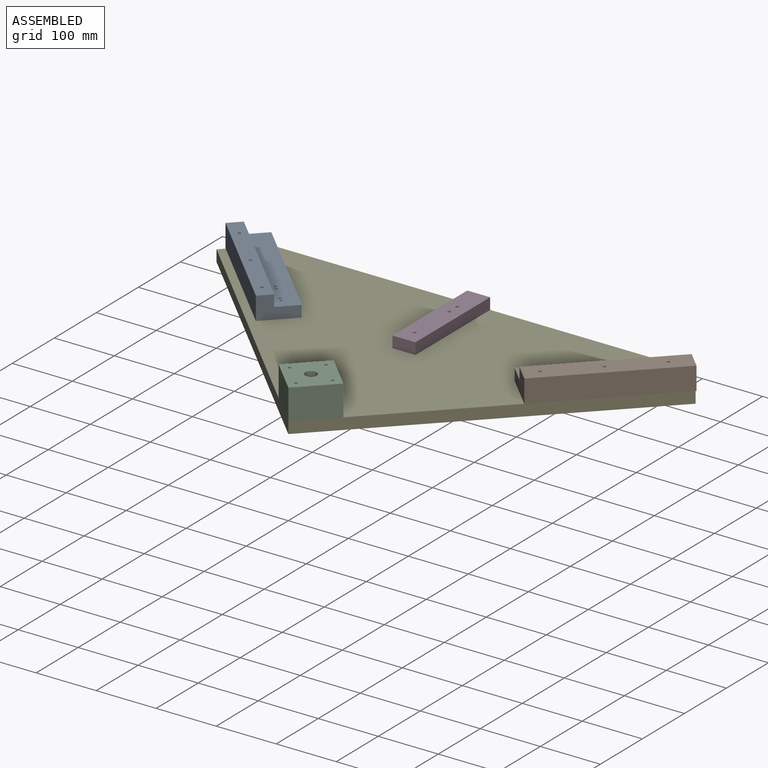
[diagram: assembled view]
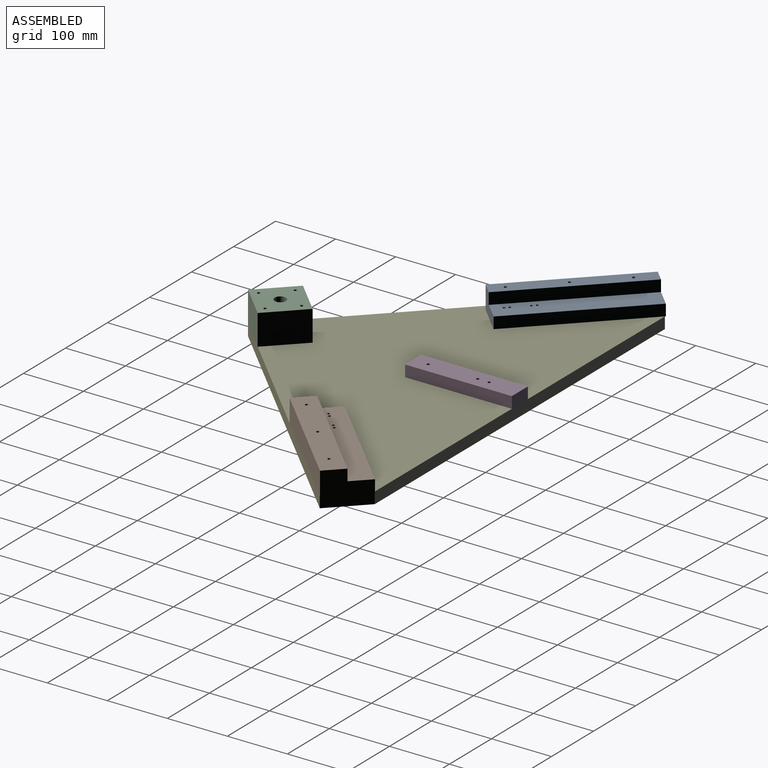
[diagram: assembled view, second angle]
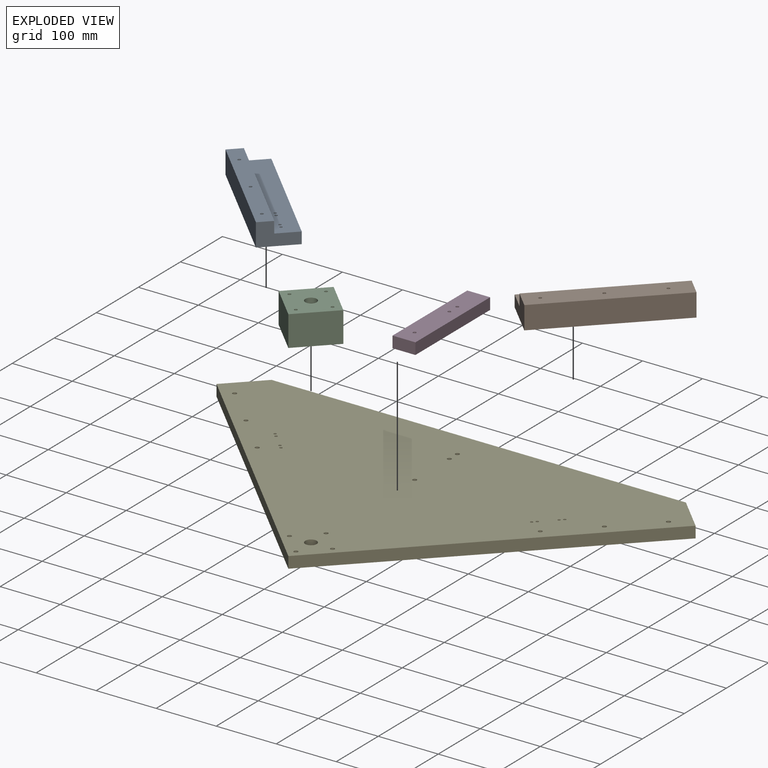
[diagram: exploded view]
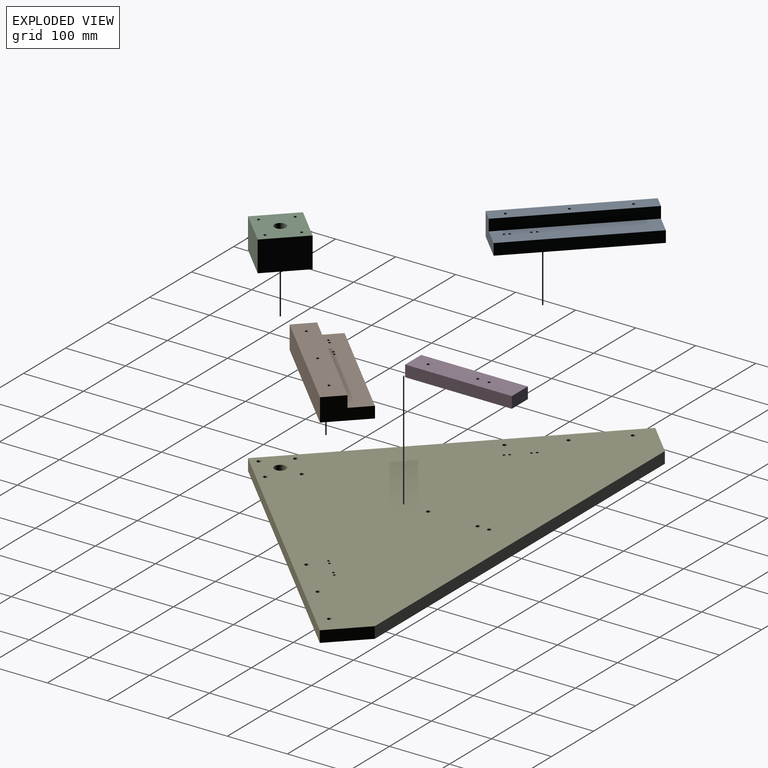
[diagram: exploded view, second angle]
ASSEMBLY  parts=5 mates=4
PART A: 15 faces, bbox 213.7x213.7x38.1 mm
  f0: plane 195.7x195.7mm, normal (0,0,1), area 9033.3mm2, adj f1,f3,f4,f6,f8,f9,f10,f11
  f1: plane 44.9x44.9mm, normal (-0.71,0.71,0), area 1693.5mm2, adj f0,f2,f4,f5,f6,f7
  f2: plane 168.76x168.76mm, normal (-0.71,-0.71,0), area 9093.1mm2, adj f1,f3,f5,f7
  f3: plane 44.9x44.9mm, normal (0.71,-0.71,0), area 1693.5mm2, adj f0,f2,f4,f5,f6,f7
  f4: plane 168.76x168.76mm, normal (0.71,0.71,0), area 4546.6mm2, adj f0,f1,f3,f5
  f5: plane 213.66x213.66mm, normal (0,0,-1), area 15033.9mm2, adj f1,f2,f3,f4,f8,f9,f10,f11
  f6: plane 168.76x168.76mm, normal (0.71,0.71,0), area 4546.6mm2, adj f0,f1,f3,f7
  f7: plane 186.72x186.72mm, normal (0,0,1), area 6000.7mm2, adj f1,f2,f3,f6,f12,f13,f14
  f8: cylinder r=2.18mm len=19.05mm, axis (0,0,1), area 261.3mm2, adj f0,f5
  f9: cylinder r=2.18mm len=19.05mm, axis (0,0,1), area 261.3mm2, adj f0,f5
  f10: cylinder r=2.18mm len=19.05mm, axis (0,0,1), area 261.3mm2, adj f0,f5
  f11: cylinder r=2.18mm len=19.05mm, axis (0,0,1), area 261.3mm2, adj f0,f5
  f12: cylinder r=2.55mm len=38.1mm, axis (0,0,-1), area 611.1mm2, adj f5,f7
  f13: cylinder r=2.55mm len=38.1mm, axis (0,0,-1), area 611.1mm2, adj f5,f7
  f14: cylinder r=2.55mm len=38.1mm, axis (0,0,-1), area 611.1mm2, adj f5,f7
PART B: 15 faces, bbox 222.6x222.6x38.1 mm
  f0: plane 168.76x168.76mm, normal (-0.71,0.71,0), area 4546.6mm2, adj f1,f7,f8,f9
  f1: plane 53.88x53.88mm, normal (-0.71,-0.71,0), area 2177.4mm2, adj f0,f2,f8,f9,f10,f11
  f2: plane 168.76x168.76mm, normal (0.71,-0.71,0), area 9093.1mm2, adj f1,f7,f9,f11
  f3: cylinder r=2.18mm len=19.05mm, axis (0,0,-1), area 261.3mm2, adj f8,f9
  f4: cylinder r=2.18mm len=19.05mm, axis (0,0,-1), area 261.3mm2, adj f8,f9
  f5: cylinder r=2.18mm len=19.05mm, axis (0,0,-1), area 261.3mm2, adj f8,f9
  f6: cylinder r=2.18mm len=19.05mm, axis (0,0,-1), area 261.3mm2, adj f8,f9
  f7: plane 53.88x53.88mm, normal (0.71,0.71,0), area 2177.4mm2, adj f0,f2,f8,f9,f10,f11
  f8: plane 195.7x195.7mm, normal (0,0,1), area 9033.3mm2, adj f0,f1,f3,f4,f5,f6,f7,f10
  f9: plane 222.64x222.64mm, normal (0,0,-1), area 18065mm2, adj f0,f1,f2,f3,f4,f5,f6,f7
  f10: plane 168.76x168.76mm, normal (-0.71,0.71,0), area 4546.6mm2, adj f1,f7,f8,f11
  f11: plane 195.7x195.7mm, normal (0,0,1), area 9031.7mm2, adj f1,f2,f7,f10,f12,f13,f14
  f12: cylinder r=2.55mm len=38.1mm, axis (0,0,-1), area 611.1mm2, adj f9,f11
  f13: cylinder r=2.55mm len=38.1mm, axis (0,0,-1), area 611.1mm2, adj f9,f11
  f14: cylinder r=2.55mm len=38.1mm, axis (0,0,-1), area 611.1mm2, adj f9,f11
PART C: 11 faces, bbox 76.2x76.2x50.8 mm
  f0: plane 76.2x50.8mm, normal (0,1,0), area 3871mm2, adj f1,f4,f5,f6
  f1: plane 76.2x50.8mm, normal (-1,0,0), area 3871mm2, adj f0,f2,f5,f6
  f2: plane 76.2x50.8mm, normal (0,-1,0), area 3871mm2, adj f1,f4,f5,f6
  f3: cylinder r=9.53mm len=50.8mm, axis (0,0,-1), area 3040.2mm2, adj f5,f6
  f4: plane 76.2x50.8mm, normal (1,0,0), area 3871mm2, adj f0,f2,f5,f6
  f5: plane 76.2x76.2mm, normal (0,0,1), area 5439.5mm2, adj f0,f1,f2,f3,f4,f7,f8,f9
  f6: plane 76.2x76.2mm, normal (0,0,-1), area 5439.5mm2, adj f0,f1,f2,f3,f4,f7,f8,f9
  f7: cylinder r=2.55mm len=50.8mm, axis (0,0,1), area 814.8mm2, adj f5,f6
  f8: cylinder r=2.55mm len=50.8mm, axis (0,0,1), area 814.8mm2, adj f5,f6
  f9: cylinder r=2.55mm len=50.8mm, axis (0,0,1), area 814.8mm2, adj f5,f6
  f10: cylinder r=2.55mm len=50.8mm, axis (0,0,1), area 814.8mm2, adj f5,f6
PART D: 9 faces, bbox 38.1x177.8x19.1 mm
  f0: plane 38.1x19.05mm, normal (0,1,0), area 725.8mm2, adj f1,f3,f4,f5
  f1: plane 177.8x19.05mm, normal (-1,0,0), area 3387.1mm2, adj f0,f2,f4,f5
  f2: plane 38.1x19.05mm, normal (0,-1,0), area 725.8mm2, adj f1,f3,f4,f5
  f3: plane 177.8x19.05mm, normal (1,0,0), area 3387.1mm2, adj f0,f2,f4,f5
  f4: plane 177.8x38.1mm, normal (0,0,1), area 6712.8mm2, adj f0,f1,f2,f3,f6,f7,f8
  f5: plane 177.8x38.1mm, normal (0,0,-1), area 6712.8mm2, adj f0,f1,f2,f3,f6,f7,f8
  f6: cylinder r=2.55mm len=19.05mm, axis (0,0,1), area 305.5mm2, adj f4,f5
  f7: cylinder r=2.55mm len=19.05mm, axis (0,0,1), area 305.5mm2, adj f4,f5
  f8: cylinder r=2.55mm len=19.05mm, axis (0,0,1), area 305.5mm2, adj f4,f5
PART E: 29 faces, bbox 798.2x453x19.1 mm
  f0: plane 399.08x399.08mm, normal (0.71,-0.71,0), area 10751.6mm2, adj f1,f13,f14,f15
  f1: plane 53.88x53.88mm, normal (0.71,0.71,0), area 1451.6mm2, adj f0,f2,f14,f15
  f2: plane 690.4x19.05mm, normal (0,1,0), area 13152.2mm2, adj f1,f3,f14,f15
  f3: plane 53.88x53.88mm, normal (-0.71,0.71,0), area 1451.6mm2, adj f2,f13,f14,f15
  f4: cylinder r=9.53mm len=19.05mm, axis (0,0,-1), area 1140.1mm2, adj f14,f15
  f5: cylinder r=2.18mm len=19.05mm, axis (0,0,-1), area 261.3mm2, adj f14,f15
  f6: cylinder r=2.18mm len=19.05mm, axis (0,0,-1), area 261.3mm2, adj f14,f15
  f7: cylinder r=2.18mm len=19.05mm, axis (0,0,-1), area 261.3mm2, adj f14,f15
  f8: cylinder r=2.18mm len=19.05mm, axis (0,0,-1), area 261.3mm2, adj f14,f15
  f9: cylinder r=2.18mm len=19.05mm, axis (0,0,-1), area 261.3mm2, adj f14,f15
  f10: cylinder r=2.18mm len=19.05mm, axis (0,0,-1), area 261.3mm2, adj f14,f15
  f11: cylinder r=2.18mm len=19.05mm, axis (0,0,-1), area 261.3mm2, adj f14,f15
  f12: cylinder r=2.18mm len=19.05mm, axis (0,0,-1), area 261.3mm2, adj f14,f15
  f13: plane 399.08x399.08mm, normal (-0.71,-0.71,0), area 10751.6mm2, adj f0,f3,f14,f15
  f14: plane 798.17x452.96mm, normal (0,0,1), area 198499.2mm2, adj f0,f1,f2,f3,f4,f5,f6,f7
  f15: plane 798.17x452.96mm, normal (0,0,-1), area 198499.2mm2, adj f0,f1,f2,f3,f4,f5,f6,f7
  f16: cylinder r=3.38mm len=19.05mm, axis (0,0,1), area 404.4mm2, adj f14,f15
  f17: cylinder r=3.38mm len=19.05mm, axis (0,0,1), area 404.4mm2, adj f14,f15
  f18: cylinder r=3.38mm len=19.05mm, axis (0,0,1), area 404.4mm2, adj f14,f15
  f19: cylinder r=3.38mm len=19.05mm, axis (0,0,1), area 404.4mm2, adj f14,f15
  f20: cylinder r=3.38mm len=19.05mm, axis (0,0,1), area 404.4mm2, adj f14,f15
  f21: cylinder r=3.38mm len=19.05mm, axis (0,0,1), area 404.4mm2, adj f14,f15
  f22: cylinder r=3.38mm len=19.05mm, axis (0,0,1), area 404.4mm2, adj f14,f15
  f23: cylinder r=3.38mm len=19.05mm, axis (0,0,1), area 404.4mm2, adj f14,f15
  f24: cylinder r=3.38mm len=19.05mm, axis (0,0,1), area 404.4mm2, adj f14,f15
  f25: cylinder r=3.38mm len=19.05mm, axis (0,0,1), area 404.4mm2, adj f14,f15
  f26: cylinder r=3.38mm len=19.05mm, axis (0,0,1), area 404.4mm2, adj f14,f15
  f27: cylinder r=3.38mm len=19.05mm, axis (0,0,1), area 404.4mm2, adj f14,f15
  f28: cylinder r=3.38mm len=19.05mm, axis (0,0,1), area 404.4mm2, adj f14,f15
PLACE A t=(-193.53,245.72,-9.53)mm
PLACE B t=(-193.53,245.72,-9.53)mm
PLACE C rot(axis=(0,0,-1),45deg) t=(-195.64,3.16,-9.53)mm
PLACE D t=(-197.15,282.33,-9.53)mm
PLACE E t=(-193.82,2.46,-28.58)mm
MATE fastened E.f26 <-> D.f8  axis (0,0,1) through (-193.82,350.74,-9.53)mm
MATE revolute E.f4 <-> C.f3  axis (0,0,1) through (-193.82,2.46,-9.53)mm
MATE fastened E.f8 <-> A.f8  axis (0,0,1) through (-402.61,229.21,-9.53)mm
MATE fastened E.f9 <-> B.f3  axis (0,0,1) through (14.97,229.21,-9.53)mm
